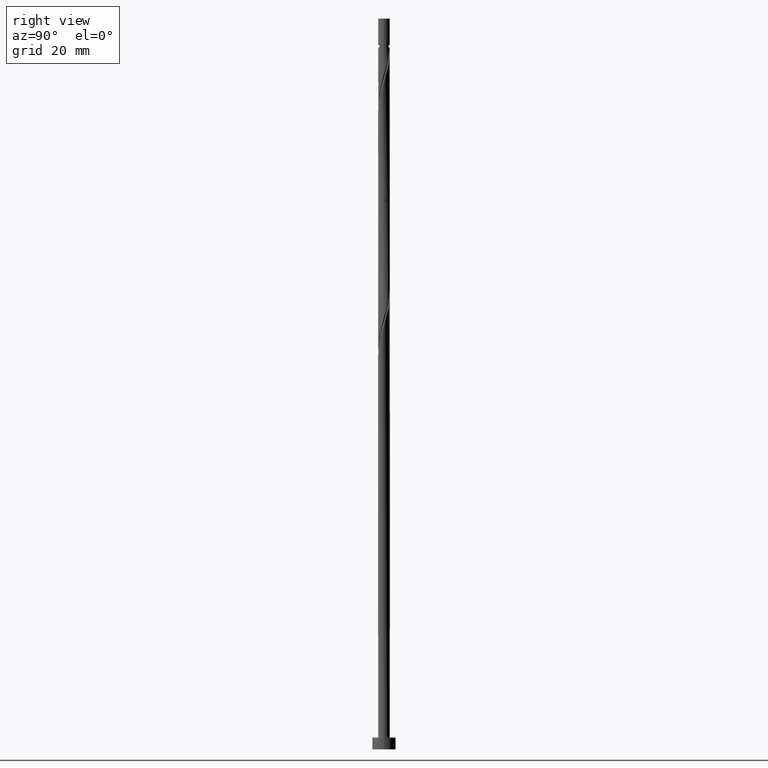
[diagram: clean part render]
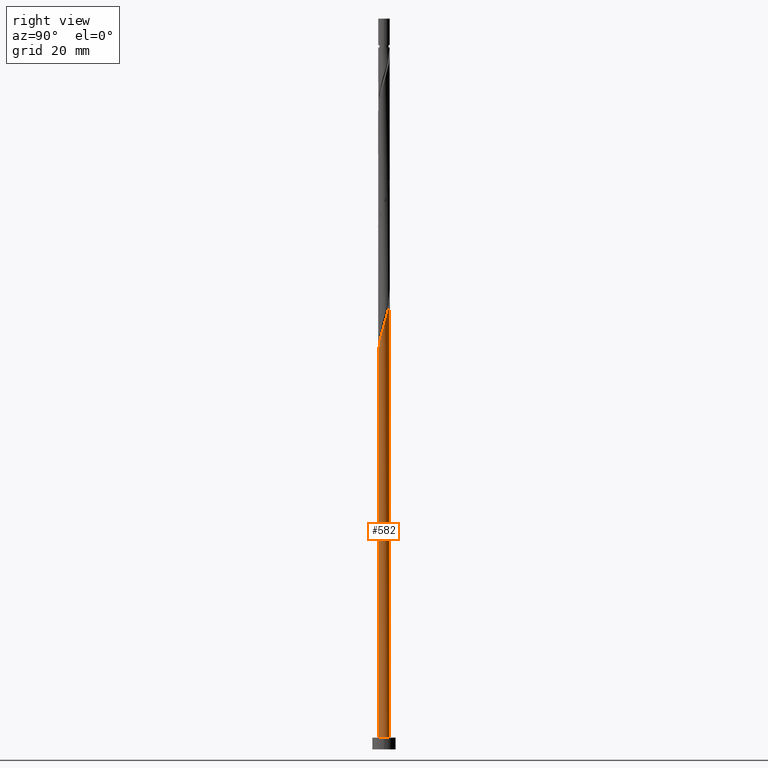
[diagram: same view with one face highlighted and labeled with its STEP entity id]
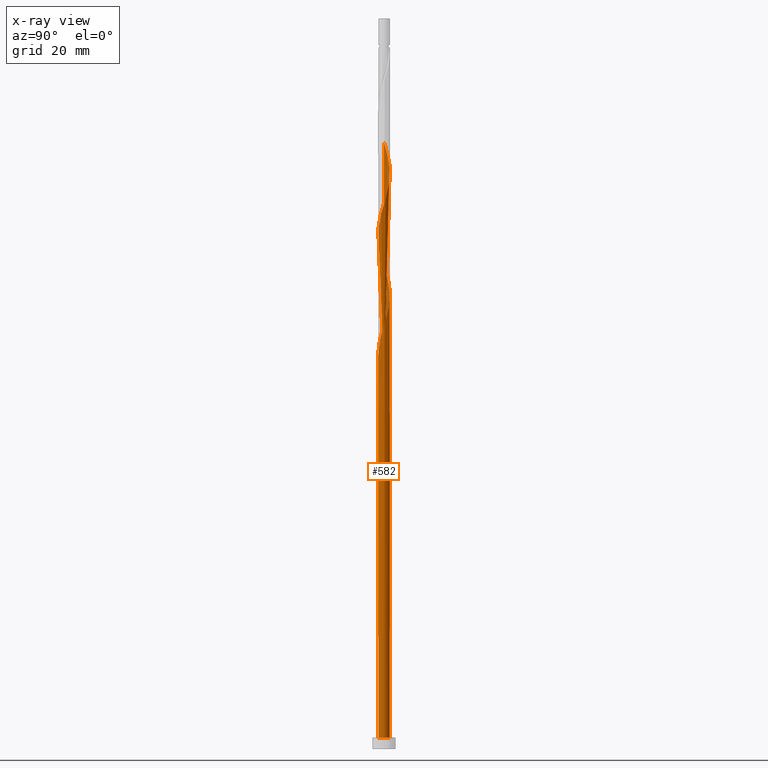
[diagram: x-ray of the same camera — body ghosted, the highlighted face saturated]
A machine part, right view. The second image highlights one B-rep face of the part: STEP entity #582.
The next image is the same camera in x-ray: the body ghosted, the highlighted face saturated — about 0% of this face is hidden behind the body in this view.
In plain terms, the highlighted cylindrical surface (bore or boss wall) has radius 1 mm, axis along (-0, -0, -1).
Its self-contained STEP definition (entity closure, byte-faithful):
#13 = CARTESIAN_POINT ( 'NONE',  ( -0.2709383306013492532, -0.9755398771694950844, 66.43004556354566148 ) ) ;
#31 = CARTESIAN_POINT ( 'NONE',  ( -1.000000000000001110, -0.1005037815259230971, 62.45371436414991706 ) ) ;
#37 = CARTESIAN_POINT ( 'NONE',  ( 0.8440690085044274538, -0.5591360655683665914, 91.43004556354568990 ) ) ;
#44 = CARTESIAN_POINT ( 'NONE',  ( 0.04378073590327874465, -1.011518105671216805, 88.30504556354568990 ) ) ;
#54 = CARTESIAN_POINT ( 'NONE',  ( -0.9484818943287859350, -0.3542142389393704294, 84.13837889687901850 ) ) ;
#62 = CARTESIAN_POINT ( 'NONE',  ( -0.8440690085044274538, 0.5591360655683665914, 101.8467122302123613 ) ) ;
#69 = CARTESIAN_POINT ( 'NONE',  ( -0.4150371980848580056, -0.9098044428369609360, 86.74254556354566148 ) ) ;
#71 = FACE_OUTER_BOUND ( 'NONE', #1122, .T. ) ;
#82 = EDGE_CURVE ( 'NONE', #1273, #1213, #156, .T. ) ;
#90 = ORIENTED_EDGE ( 'NONE', *, *, #301, .F. ) ;
#108 = VECTOR ( 'NONE', #703, 1000.000000000000000 ) ;
#123 = CARTESIAN_POINT ( 'NONE',  ( -0.6758688661379378404, -0.7370218964083908864, 64.86754556354564727 ) ) ;
#124 = CARTESIAN_POINT ( 'NONE',  ( -0.5591360655683665914, 0.8440690085044274538, 60.18004556354565437 ) ) ;
#130 = ORIENTED_EDGE ( 'NONE', *, *, #1202, .F. ) ;
#133 = CARTESIAN_POINT ( 'NONE',  ( 0.4920945116258624297, -0.8705417805181474566, 69.03421223021229025 ) ) ;
#135 = EDGE_CURVE ( 'NONE', #1105, #1363, #1166, .T. ) ;
#154 = CARTESIAN_POINT ( 'NONE',  ( 0.3542142389393703183, -0.9484818943287859350, 89.34671223021233288 ) ) ;
#156 = CIRCLE ( 'NONE', #668, 1.000000000000000000 ) ;
#164 = CARTESIAN_POINT ( 'NONE',  ( -0.8440690085044274538, 0.5591360655683665914, 81.01337889687901850 ) ) ;
#169 = CARTESIAN_POINT ( 'NONE',  ( 0.9098044428369609360, -0.4150371980848580056, 91.95087889687897587 ) ) ;
#178 = CARTESIAN_POINT ( 'NONE',  ( 1.011518105671216805, 0.04378073590327870301, 93.51337889687900429 ) ) ;
#179 = CIRCLE ( 'NONE', #363, 1.000000000000000000 ) ;
#183 = CARTESIAN_POINT ( 'NONE',  ( -0.8705417805181474566, -0.4920945116258624297, 84.65921223021231867 ) ) ;
#187 = CARTESIAN_POINT ( 'NONE',  ( -1.000000000000001554, 1.334386147705300142E-15, 62.11940978874206820 ) ) ;
#198 = DIRECTION ( 'NONE',  ( 0.000000000000000000, 0.000000000000000000, 1.000000000000000000 ) ) ;
#208 = DIRECTION ( 'NONE',  ( 1.000000000000000000, 0.000000000000000000, 0.000000000000000000 ) ) ;
#216 = DIRECTION ( 'NONE',  ( 0.000000000000000000, 0.000000000000000000, 1.000000000000000000 ) ) ;
#230 = DIRECTION ( 'NONE',  ( 1.000000000000000000, 0.000000000000000000, 0.000000000000000000 ) ) ;
#231 = VERTEX_POINT ( 'NONE', #1318 ) ;
#234 = CARTESIAN_POINT ( 'NONE',  ( -0.7926016667075090893, 0.6299747843123546520, 61.22171223021231867 ) ) ;
#241 = CARTESIAN_POINT ( 'NONE',  ( -1.000000000000001554, 1.334386147705300142E-15, 62.11940978874206820 ) ) ;
#246 = CARTESIAN_POINT ( 'NONE',  ( -0.1989974874213244205, 0.9800000000000013145, 57.57587889687898297 ) ) ;
#247 = CARTESIAN_POINT ( 'NONE',  ( -1.000000000000001332, 0.1005037815259209738, 63.11471009627475581 ) ) ;
#257 = VERTEX_POINT ( 'NONE', #311 ) ;
#258 = ORIENTED_EDGE ( 'NONE', *, *, #135, .T. ) ;
#265 = CARTESIAN_POINT ( 'NONE',  ( 0.5591360655683665914, 0.8440690085044272317, 96.63837889687903271 ) ) ;
#274 = CARTESIAN_POINT ( 'NONE',  ( 0.1989974874213244760, -0.9800000000000013145, 88.82587889687897587 ) ) ;
#283 = CARTESIAN_POINT ( 'NONE',  ( 0.2709383306013493642, 0.9755398771694950844, 76.84671223021236131 ) ) ;
#288 = ORIENTED_EDGE ( 'NONE', *, *, #554, .F. ) ;
#289 = CARTESIAN_POINT ( 'NONE',  ( 0.6758688661379378404, 0.7370218964083907753, 96.11754556354567569 ) ) ;
#295 = CARTESIAN_POINT ( 'NONE',  ( 0.1135787973490353792, 0.9935289914203557782, 77.36754556354566148 ) ) ;
#301 = EDGE_CURVE ( 'NONE', #231, #1213, #926, .T. ) ;
#308 = ORIENTED_EDGE ( 'NONE', *, *, #1151, .T. ) ;
#311 = CARTESIAN_POINT ( 'NONE',  ( -1.000000000000001332, 4.572896348877712718E-16, 103.7860764554087183 ) ) ;
#352 = CARTESIAN_POINT ( 'NONE',  ( 0.1989974874213244760, -0.9800000000000013145, 67.99254556354564727 ) ) ;
#363 = AXIS2_PLACEMENT_3D ( 'NONE', #1230, #216, #208 ) ;
#379 = CARTESIAN_POINT ( 'NONE',  ( 0.8705417805181474566, 0.4920945116258624297, 74.24254556354564727 ) ) ;
#382 = CARTESIAN_POINT ( 'NONE',  ( -0.3542142389393704294, 0.9484818943287859350, 58.09671223021232578 ) ) ;
#390 = CARTESIAN_POINT ( 'NONE',  ( -0.9800000000000013145, -0.1989974874213245870, 83.61754556354564727 ) ) ;
#398 = CARTESIAN_POINT ( 'NONE',  ( -0.9755398771694950844, 0.2709383306013492532, 82.05504556354568990 ) ) ;
#403 = CARTESIAN_POINT ( 'NONE',  ( 0.9935289914203557782, -0.1135787973490353098, 72.15921223021233288 ) ) ;
#404 = CARTESIAN_POINT ( 'NONE',  ( -0.9755398771694950844, 0.2709383306013492532, 61.22171223021233288 ) ) ;
#410 = CARTESIAN_POINT ( 'NONE',  ( 0.6299747843123544300, -0.7926016667075096445, 69.55504556354566148 ) ) ;
#415 = CARTESIAN_POINT ( 'NONE',  ( 0.000000000000000000, 0.000000000000000000, 57.57587889687898297 ) ) ;
#451 = EDGE_CURVE ( 'NONE', #1273, #743, #629, .T. ) ;
#456 = CARTESIAN_POINT ( 'NONE',  ( -0.9484818943287859350, -0.3542142389393704294, 63.30504556354567569 ) ) ;
#472 = CARTESIAN_POINT ( 'NONE',  ( -0.4150371980848577835, 0.9098044428369610470, 59.65921223021231867 ) ) ;
#482 = LINE ( 'NONE', #941, #108 ) ;
#485 = CARTESIAN_POINT ( 'NONE',  ( -0.1989974874213244205, 0.9800000000000013145, 57.57587889687898297 ) ) ;
#490 = CARTESIAN_POINT ( 'NONE',  ( -0.6299747843123546520, 0.7926016667075094224, 79.97171223021233288 ) ) ;
#494 = CARTESIAN_POINT ( 'NONE',  ( 0.7370218964083908864, -0.6758688661379378404, 90.90921223021230446 ) ) ;
#502 = CARTESIAN_POINT ( 'NONE',  ( 0.1135787973490353792, 0.9935289914203557782, 98.20087889687897587 ) ) ;
#508 = CARTESIAN_POINT ( 'NONE',  ( -0.7370218964083909974, 0.6758688661379378404, 80.49254556354563306 ) ) ;
#509 = CARTESIAN_POINT ( 'NONE',  ( -1.000000000000001554, 0.05697373744643114551, 61.92989869953478888 ) ) ;
#512 = CARTESIAN_POINT ( 'NONE',  ( -0.9098044428369609360, 0.4150371980848578946, 81.53421223021233288 ) ) ;
#539 = ORIENTED_EDGE ( 'NONE', *, *, #1455, .F. ) ;
#554 = EDGE_CURVE ( 'NONE', #743, #1363, #848, .T. ) ;
#555 = ORIENTED_EDGE ( 'NONE', *, *, #554, .T. ) ;
#570 = CARTESIAN_POINT ( 'NONE',  ( -0.5591360655683665914, -0.8440690085044274538, 65.38837889687903271 ) ) ;
#579 = CARTESIAN_POINT ( 'NONE',  ( -0.8705417805181473456, 0.4920945116258624297, 61.74254556354565437 ) ) ;
#582 = ADVANCED_FACE ( 'NONE', ( #71 ), #1183, .T. ) ;
#595 = CARTESIAN_POINT ( 'NONE',  ( -0.9484818943287856019, 0.3542142389393704294, 62.26337889687899008 ) ) ;
#600 = CARTESIAN_POINT ( 'NONE',  ( 0.9755398771694950844, -0.2709383306013493087, 92.47171223021234709 ) ) ;
#606 = CARTESIAN_POINT ( 'NONE',  ( 0.9935289914203557782, -0.1135787973490353098, 92.99254556354566148 ) ) ;
#609 = CARTESIAN_POINT ( 'NONE',  ( -1.000000000000001554, 1.334386147705300142E-15, 62.11940978874206820 ) ) ;
#612 = CARTESIAN_POINT ( 'NONE',  ( -0.3542142389393704294, 0.9484818943287859350, 99.76337889687901850 ) ) ;
#616 = DIRECTION ( 'NONE',  ( -1.000000000000000000, 0.000000000000000000, 0.000000000000000000 ) ) ;
#619 = CARTESIAN_POINT ( 'NONE',  ( 0.9484818943287859350, 0.3542142389393703183, 94.55504556354568990 ) ) ;
#625 = CARTESIAN_POINT ( 'NONE',  ( -0.04378073590327866138, 1.011518105671216805, 98.72171223021233288 ) ) ;
#629 =( BOUNDED_CURVE ( )  B_SPLINE_CURVE ( 2, ( #485, #382, #1391, #834, #1418, #1410, #1305, #404, #1203, #509, #187 ),
 .UNSPECIFIED., .F., .T. ) 
 B_SPLINE_CURVE_WITH_KNOTS ( ( 3, 2, 2, 2, 2, 3 ),
 ( 0.000000000000000000, 0.01249999999999995559, 0.02500000000000002220, 0.03749999999999997780, 0.05000000000000004441, 0.05453220231385531858 ),
 .UNSPECIFIED. ) 
 CURVE ( )  GEOMETRIC_REPRESENTATION_ITEM ( )  RATIONAL_B_SPLINE_CURVE ( ( 0.9090909090909240486, 0.8978984914501398906, 0.9090909090909240486, 0.8978984914501398906, 0.9090909090909240486, 0.8978984914501398906, 0.9090909090909240486, 0.8978984914501398906, 0.9090909090909240486, 0.9050328050005882474, 0.9039174447099460608 ) ) 
 REPRESENTATION_ITEM ( '' )  );
#637 = ORIENTED_EDGE ( 'NONE', *, *, #82, .T. ) ;
#638 = CARTESIAN_POINT ( 'NONE',  ( -0.9755398771694950844, 0.2709383306013492532, 102.8883788968790469 ) ) ;
#656 = CARTESIAN_POINT ( 'NONE',  ( -1.000000000000001110, 0.05697373744643621091, 103.5965653662014319 ) ) ;
#668 = AXIS2_PLACEMENT_3D ( 'NONE', #415, #769, #1343 ) ;
#689 = CARTESIAN_POINT ( 'NONE',  ( -0.6758688661379378404, 0.7370218964083908864, 60.70087889687899718 ) ) ;
#698 = CARTESIAN_POINT ( 'NONE',  ( 0.3542142389393703183, -0.9484818943287859350, 68.51337889687901850 ) ) ;
#703 = DIRECTION ( 'NONE',  ( -0.000000000000000000, -0.000000000000000000, -1.000000000000000000 ) ) ;
#722 = CARTESIAN_POINT ( 'NONE',  ( 0.9098044428369609360, -0.4150371980848580056, 71.11754556354564727 ) ) ;
#730 = CARTESIAN_POINT ( 'NONE',  ( -0.2709383306013492532, -0.9755398771694950844, 87.26337889687900429 ) ) ;
#736 = CARTESIAN_POINT ( 'NONE',  ( -0.6758688661379378404, -0.7370218964083908864, 85.70087889687900429 ) ) ;
#743 = VERTEX_POINT ( 'NONE', #609 ) ;
#744 = CARTESIAN_POINT ( 'NONE',  ( 0.7370218964083908864, -0.6758688661379378404, 70.07587889687899008 ) ) ;
#759 = CARTESIAN_POINT ( 'NONE',  ( 0.000000000000000000, 0.000000000000000000, 2.000000000000000000 ) ) ;
#769 = DIRECTION ( 'NONE',  ( 0.000000000000000000, -0.000000000000000000, -1.000000000000000000 ) ) ;
#800 = CARTESIAN_POINT ( 'NONE',  ( 0.04378073590327893894, 1.011518105671216583, 58.09671223021232578 ) ) ;
#830 = CARTESIAN_POINT ( 'NONE',  ( 0.6758688661379378404, 0.7370218964083907753, 75.28421223021230446 ) ) ;
#834 = CARTESIAN_POINT ( 'NONE',  ( -0.6299747843123546520, 0.7926016667075094224, 59.13837889687899718 ) ) ;
#839 = CARTESIAN_POINT ( 'NONE',  ( -0.7926016667075094224, -0.6299747843123546520, 85.18004556354568990 ) ) ;
#847 = CARTESIAN_POINT ( 'NONE',  ( 0.2709383306013493642, 0.9755398771694950844, 97.68004556354566148 ) ) ;
#848 = LINE ( 'NONE', #1083, #1239 ) ;
#852 = CARTESIAN_POINT ( 'NONE',  ( 0.8440690085044274538, -0.5591360655683665914, 70.59671223021236131 ) ) ;
#857 = CARTESIAN_POINT ( 'NONE',  ( -1.011518105671216805, -0.04378073590327886955, 83.09671223021230446 ) ) ;
#864 = CARTESIAN_POINT ( 'NONE',  ( -1.000000000000001332, 4.572896348877712718E-16, 103.7860764554087183 ) ) ;
#899 = CARTESIAN_POINT ( 'NONE',  ( 1.000000000000000000, 0.000000000000000000, 2.000000000000000000 ) ) ;
#916 = CARTESIAN_POINT ( 'NONE',  ( -0.1135787973490352265, -0.9935289914203557782, 66.95087889687899008 ) ) ;
#924 = CARTESIAN_POINT ( 'NONE',  ( -0.1135787973490351155, 0.9935289914203557782, 58.61754556354565437 ) ) ;
#926 =( BOUNDED_CURVE ( )  B_SPLINE_CURVE ( 2, ( #1249, #247, #1148, #595, #579, #234, #689, #124, #472, #931, #924, #800, #1372 ),
 .UNSPECIFIED., .F., .T. ) 
 B_SPLINE_CURVE_WITH_KNOTS ( ( 3, 2, 2, 2, 2, 2, 3 ),
 ( 0.9295322023138551382, 0.9375000000000000000, 0.9499999999999999556, 0.9625000000000000222, 0.9749999999999999778, 0.9875000000000000444, 1.000000000000000000 ),
 .UNSPECIFIED. ) 
 CURVE ( )  GEOMETRIC_REPRESENTATION_ITEM ( )  RATIONAL_B_SPLINE_CURVE ( ( 0.9039174447099460608, 0.9019565955404753588, 0.9090909090909238266, 0.8978984914501398906, 0.9090909090909238266, 0.8978984914501398906, 0.9090909090909238266, 0.8978984914501398906, 0.9090909090909238266, 0.8978984914501398906, 0.9090909090909238266, 0.8978984914501398906, 0.9090909090909238266 ) ) 
 REPRESENTATION_ITEM ( '' )  );
#931 = CARTESIAN_POINT ( 'NONE',  ( -0.2709383306013491421, 0.9755398771694949733, 59.13837889687898297 ) ) ;
#941 = CARTESIAN_POINT ( 'NONE',  ( -1.000000000000000000, 0.000000000000000000, 125.0000000000000000 ) ) ;
#948 = CARTESIAN_POINT ( 'NONE',  ( 0.7926016667075097555, 0.6299747843123544300, 95.59671223021236131 ) ) ;
#951 = CARTESIAN_POINT ( 'NONE',  ( 0.000000000000000000, 0.000000000000000000, 125.0000000000000000 ) ) ;
#956 = CARTESIAN_POINT ( 'NONE',  ( 0.8705417805181474566, 0.4920945116258624297, 95.07587889687903271 ) ) ;
#962 = CARTESIAN_POINT ( 'NONE',  ( -0.9935289914203557782, 0.1135787973490351710, 82.57587889687900429 ) ) ;
#968 = CARTESIAN_POINT ( 'NONE',  ( 0.9755398771694950844, -0.2709383306013493087, 71.63837889687901850 ) ) ;
#970 = DIRECTION ( 'NONE',  ( -0.000000000000000000, -0.000000000000000000, -1.000000000000000000 ) ) ;
#973 = CARTESIAN_POINT ( 'NONE',  ( 0.9800000000000013145, 0.1989974874213244482, 73.20087889687900429 ) ) ;
#974 = DIRECTION ( 'NONE',  ( -0.000000000000000000, -0.000000000000000000, -1.000000000000000000 ) ) ;
#1023 = CARTESIAN_POINT ( 'NONE',  ( -0.4150371980848580056, -0.9098044428369609360, 65.90921223021231867 ) ) ;
#1051 = CARTESIAN_POINT ( 'NONE',  ( 0.9800000000000013145, 0.1989974874213244482, 94.03421223021231867 ) ) ;
#1057 = CARTESIAN_POINT ( 'NONE',  ( -0.1135787973490352265, -0.9935289914203557782, 87.78421223021230446 ) ) ;
#1062 = CARTESIAN_POINT ( 'NONE',  ( -0.4920945116258624297, 0.8705417805181474566, 79.45087889687900429 ) ) ;
#1067 = AXIS2_PLACEMENT_3D ( 'NONE', #759, #198, #230 ) ;
#1071 = CARTESIAN_POINT ( 'NONE',  ( -0.7370218964083909974, 0.6758688661379378404, 101.3258788968789759 ) ) ;
#1076 = CARTESIAN_POINT ( 'NONE',  ( -0.9098044428369609360, 0.4150371980848578946, 102.3675455635456757 ) ) ;
#1083 = CARTESIAN_POINT ( 'NONE',  ( -1.000000000000000000, 0.000000000000000000, 125.0000000000000000 ) ) ;
#1088 = CARTESIAN_POINT ( 'NONE',  ( -0.9935289914203557782, 0.1135787973490351710, 103.4092122302123045 ) ) ;
#1105 = VERTEX_POINT ( 'NONE', #899 ) ;
#1113 = AXIS2_PLACEMENT_3D ( 'NONE', #951, #970, #616 ) ;
#1122 = EDGE_LOOP ( 'NONE', ( #130, #539, #555, #308, #258, #288, #1310, #637, #90 ) ) ;
#1129 = CARTESIAN_POINT ( 'NONE',  ( -0.7926016667075094224, -0.6299747843123546520, 64.34671223021233288 ) ) ;
#1141 = CARTESIAN_POINT ( 'NONE',  ( -1.000000000000000000, 0.000000000000000000, 2.000000000000000000 ) ) ;
#1148 = CARTESIAN_POINT ( 'NONE',  ( -0.9800000000000010925, 0.1989974874213246703, 62.78421223021232578 ) ) ;
#1151 = EDGE_CURVE ( 'NONE', #1363, #1105, #179, .T. ) ;
#1162 = CARTESIAN_POINT ( 'NONE',  ( -0.3542142389393704294, 0.9484818943287859350, 78.93004556354568990 ) ) ;
#1166 = CIRCLE ( 'NONE', #1067, 1.000000000000000000 ) ;
#1173 = CARTESIAN_POINT ( 'NONE',  ( 0.5591360655683665914, 0.8440690085044272317, 75.80504556354568990 ) ) ;
#1180 = CARTESIAN_POINT ( 'NONE',  ( -0.1989974874213244205, 0.9800000000000013145, 99.24254556354568990 ) ) ;
#1183 = CYLINDRICAL_SURFACE ( 'NONE', #1113, 1.000000000000000000 ) ;
#1190 = CARTESIAN_POINT ( 'NONE',  ( 0.4920945116258624297, -0.8705417805181474566, 89.86754556354563306 ) ) ;
#1196 = CARTESIAN_POINT ( 'NONE',  ( -0.04378073590327866138, 1.011518105671216805, 77.88837889687903271 ) ) ;
#1202 = EDGE_CURVE ( 'NONE', #257, #231, #482, .T. ) ;
#1203 = CARTESIAN_POINT ( 'NONE',  ( -0.9935289914203557782, 0.1135787973490351710, 61.74254556354565437 ) ) ;
#1213 = VERTEX_POINT ( 'NONE', #1260 ) ;
#1230 = CARTESIAN_POINT ( 'NONE',  ( 0.000000000000000000, 0.000000000000000000, 2.000000000000000000 ) ) ;
#1239 = VECTOR ( 'NONE', #974, 1000.000000000000000 ) ;
#1248 = CARTESIAN_POINT ( 'NONE',  ( -0.8705417805181474566, -0.4920945116258624297, 63.82587889687899008 ) ) ;
#1249 = CARTESIAN_POINT ( 'NONE',  ( -1.000000000000001332, -1.206944774048052528E-15, 63.44901467168259757 ) ) ;
#1256 = CARTESIAN_POINT ( 'NONE',  ( -0.9800000000000013145, -0.1989974874213245870, 62.78421223021233999 ) ) ;
#1260 = CARTESIAN_POINT ( 'NONE',  ( 0.1989974874213248646, 0.9800000000000010925, 57.57587889687898297 ) ) ;
#1273 = VERTEX_POINT ( 'NONE', #246 ) ;
#1280 = CARTESIAN_POINT ( 'NONE',  ( 0.6299747843123544300, -0.7926016667075096445, 90.38837889687901850 ) ) ;
#1289 = CARTESIAN_POINT ( 'NONE',  ( 0.4150371980848581166, 0.9098044428369609360, 97.15921223021231867 ) ) ;
#1297 = CARTESIAN_POINT ( 'NONE',  ( -0.6299747843123546520, 0.7926016667075094224, 100.8050455635456615 ) ) ;
#1304 = CARTESIAN_POINT ( 'NONE',  ( 0.7926016667075097555, 0.6299747843123544300, 74.76337889687900429 ) ) ;
#1305 = CARTESIAN_POINT ( 'NONE',  ( -0.9098044428369609360, 0.4150371980848578946, 60.70087889687899008 ) ) ;
#1310 = ORIENTED_EDGE ( 'NONE', *, *, #451, .F. ) ;
#1311 = CARTESIAN_POINT ( 'NONE',  ( 0.9484818943287859350, 0.3542142389393703183, 73.72171223021234709 ) ) ;
#1318 = CARTESIAN_POINT ( 'NONE',  ( -1.000000000000001332, -1.206944774048052528E-15, 63.44901467168259757 ) ) ;
#1343 = DIRECTION ( 'NONE',  ( -1.000000000000000000, 0.000000000000000000, 0.000000000000000000 ) ) ;
#1363 = VERTEX_POINT ( 'NONE', #1141 ) ;
#1364 = CARTESIAN_POINT ( 'NONE',  ( 0.04378073590327874465, -1.011518105671216805, 67.47171223021233288 ) ) ;
#1372 = CARTESIAN_POINT ( 'NONE',  ( 0.1989974874213248646, 0.9800000000000010925, 57.57587889687898297 ) ) ;
#1388 = CARTESIAN_POINT ( 'NONE',  ( 0.4150371980848581166, 0.9098044428369609360, 76.32587889687901850 ) ) ;
#1390 =( BOUNDED_CURVE ( )  B_SPLINE_CURVE ( 2, ( #241, #31, #1256, #456, #1248, #1129, #123, #570, #1023, #13, #916, #1364, #352, #698, #133, #410, #744, #852, #722, #968, #403, #1408, #973, #1311, #379, #1304, #830, #1173, #1388, #283, #295, #1196, #1395, #1162, #1062, #490, #508, #164, #512, #398, #962, #857, #390, #54, #183, #839, #736, #1416, #69, #730, #1057, #44, #274, #154, #1190, #1280, #494, #37, #169, #600, #606, #178, #1051, #619, #956, #948, #289, #265, #1289, #847, #502, #625, #1180, #612, #1402, #1297, #1071, #62, #1076, #638, #1088, #656, #864 ),
 .UNSPECIFIED., .F., .T. ) 
 B_SPLINE_CURVE_WITH_KNOTS ( ( 3, 2, 2, 2, 2, 2, 2, 2, 2, 2, 2, 2, 2, 2, 2, 2, 2, 2, 2, 2, 2, 2, 2, 2, 2, 2, 2, 2, 2, 2, 2, 2, 2, 2, 2, 2, 2, 2, 2, 2, 2, 3 ),
 ( 0.05453220231385531858, 0.06250000000000000000, 0.07499999999999995559, 0.08750000000000002220, 0.09999999999999997780, 0.1125000000000000444, 0.1250000000000000000, 0.1374999999999999556, 0.1500000000000000222, 0.1624999999999999778, 0.1750000000000000444, 0.1875000000000000000, 0.1999999999999999556, 0.2125000000000000222, 0.2249999999999999778, 0.2375000000000000444, 0.2500000000000000000, 0.2624999999999999556, 0.2750000000000000222, 0.2874999999999999778, 0.3000000000000000444, 0.3125000000000000000, 0.3249999999999999556, 0.3375000000000000222, 0.3499999999999999778, 0.3625000000000000444, 0.3750000000000000000, 0.3874999999999999556, 0.4000000000000000222, 0.4124999999999999778, 0.4250000000000000444, 0.4375000000000000000, 0.4499999999999999556, 0.4625000000000000222, 0.4749999999999999778, 0.4875000000000000444, 0.5000000000000000000, 0.5124999999999999556, 0.5250000000000000222, 0.5374999999999999778, 0.5500000000000000444, 0.5545322023138549161 ),
 .UNSPECIFIED. ) 
 CURVE ( )  GEOMETRIC_REPRESENTATION_ITEM ( )  RATIONAL_B_SPLINE_CURVE ( ( 0.9039174447099460608, 0.9019565955404755808, 0.9090909090909240486, 0.8978984914501398906, 0.9090909090909240486, 0.8978984914501398906, 0.9090909090909240486, 0.8978984914501398906, 0.9090909090909240486, 0.8978984914501398906, 0.9090909090909240486, 0.8978984914501398906, 0.9090909090909240486, 0.8978984914501398906, 0.9090909090909240486, 0.8978984914501398906, 0.9090909090909240486, 0.8978984914501398906, 0.9090909090909240486, 0.8978984914501398906, 0.9090909090909240486, 0.8978984914501398906, 0.9090909090909240486, 0.8978984914501398906, 0.9090909090909240486, 0.8978984914501398906, 0.9090909090909240486, 0.8978984914501398906, 0.9090909090909240486, 0.8978984914501398906, 0.9090909090909240486, 0.8978984914501398906, 0.9090909090909240486, 0.8978984914501398906, 0.9090909090909240486, 0.8978984914501398906, 0.9090909090909240486, 0.8978984914501398906, 0.9090909090909240486, 0.8978984914501398906, 0.9090909090909240486, 0.8978984914501398906, 0.9090909090909240486, 0.8978984914501398906, 0.9090909090909240486, 0.8978984914501398906, 0.9090909090909240486, 0.8978984914501398906, 0.9090909090909240486, 0.8978984914501398906, 0.9090909090909240486, 0.8978984914501398906, 0.9090909090909240486, 0.8978984914501398906, 0.9090909090909240486, 0.8978984914501398906, 0.9090909090909240486, 0.8978984914501398906, 0.9090909090909240486, 0.8978984914501398906, 0.9090909090909240486, 0.8978984914501398906, 0.9090909090909240486, 0.8978984914501398906, 0.9090909090909240486, 0.8978984914501398906, 0.9090909090909240486, 0.8978984914501398906, 0.9090909090909240486, 0.8978984914501398906, 0.9090909090909240486, 0.8978984914501398906, 0.9090909090909240486, 0.8978984914501398906, 0.9090909090909240486, 0.8978984914501398906, 0.9090909090909240486, 0.8978984914501398906, 0.9090909090909240486, 0.8978984914501398906, 0.9090909090909240486, 0.9050328050005886915, 0.9039174447099462828 ) ) 
 REPRESENTATION_ITEM ( '' )  );
#1391 = CARTESIAN_POINT ( 'NONE',  ( -0.4920945116258624297, 0.8705417805181474566, 58.61754556354565437 ) ) ;
#1395 = CARTESIAN_POINT ( 'NONE',  ( -0.1989974874213244205, 0.9800000000000013145, 78.40921223021233288 ) ) ;
#1402 = CARTESIAN_POINT ( 'NONE',  ( -0.4920945116258624297, 0.8705417805181474566, 100.2842122302123329 ) ) ;
#1408 = CARTESIAN_POINT ( 'NONE',  ( 1.011518105671216805, 0.04378073590327870301, 72.68004556354566148 ) ) ;
#1410 = CARTESIAN_POINT ( 'NONE',  ( -0.8440690085044274538, 0.5591360655683665914, 60.18004556354567569 ) ) ;
#1416 = CARTESIAN_POINT ( 'NONE',  ( -0.5591360655683665914, -0.8440690085044274538, 86.22171223021234709 ) ) ;
#1418 = CARTESIAN_POINT ( 'NONE',  ( -0.7370218964083909974, 0.6758688661379378404, 59.65921223021233288 ) ) ;
#1455 = EDGE_CURVE ( 'NONE', #743, #257, #1390, .T. ) ;